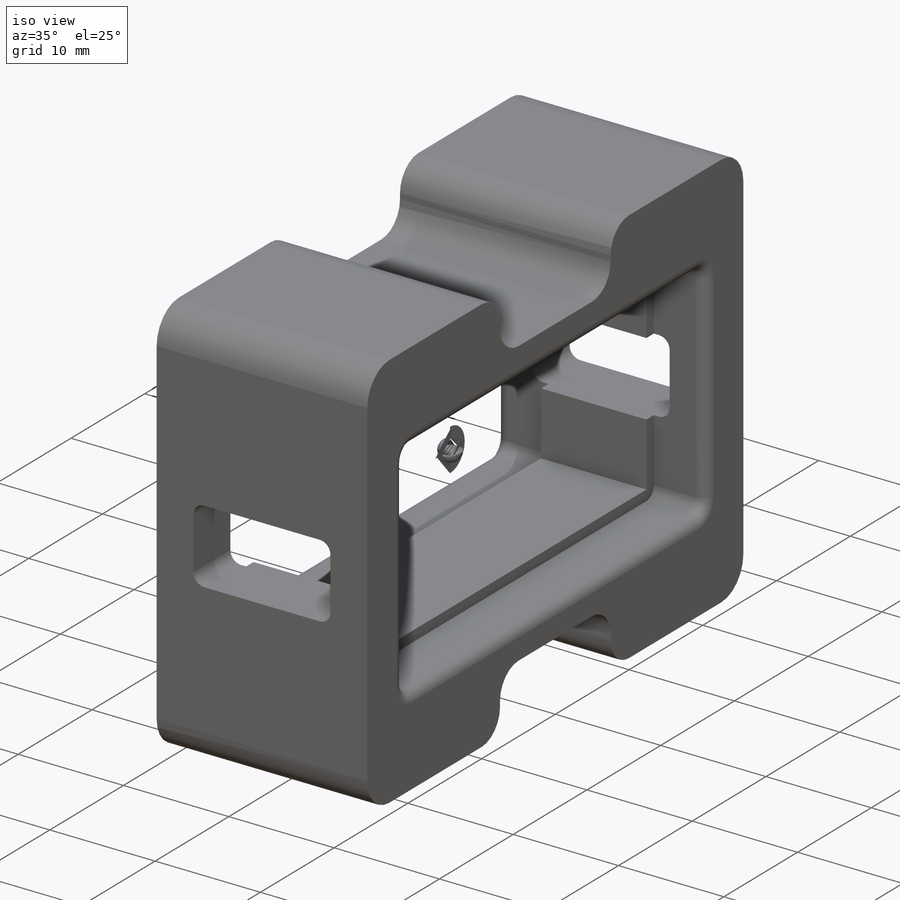
[diagram: iso view]
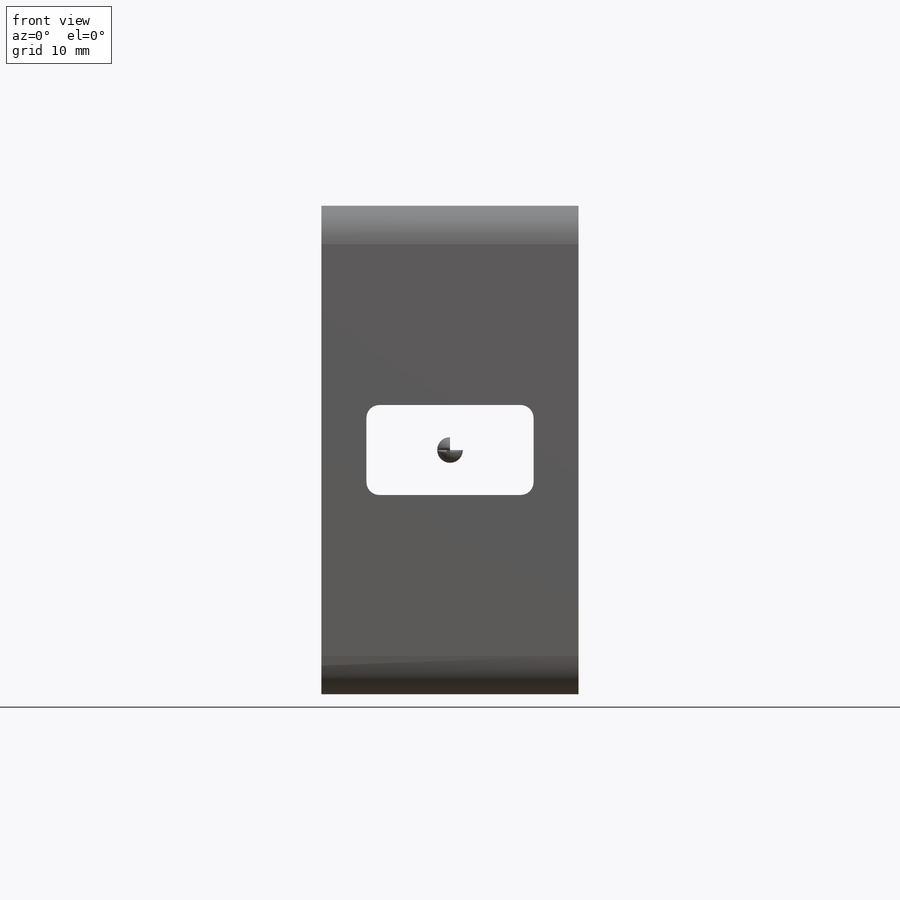
[diagram: front view]
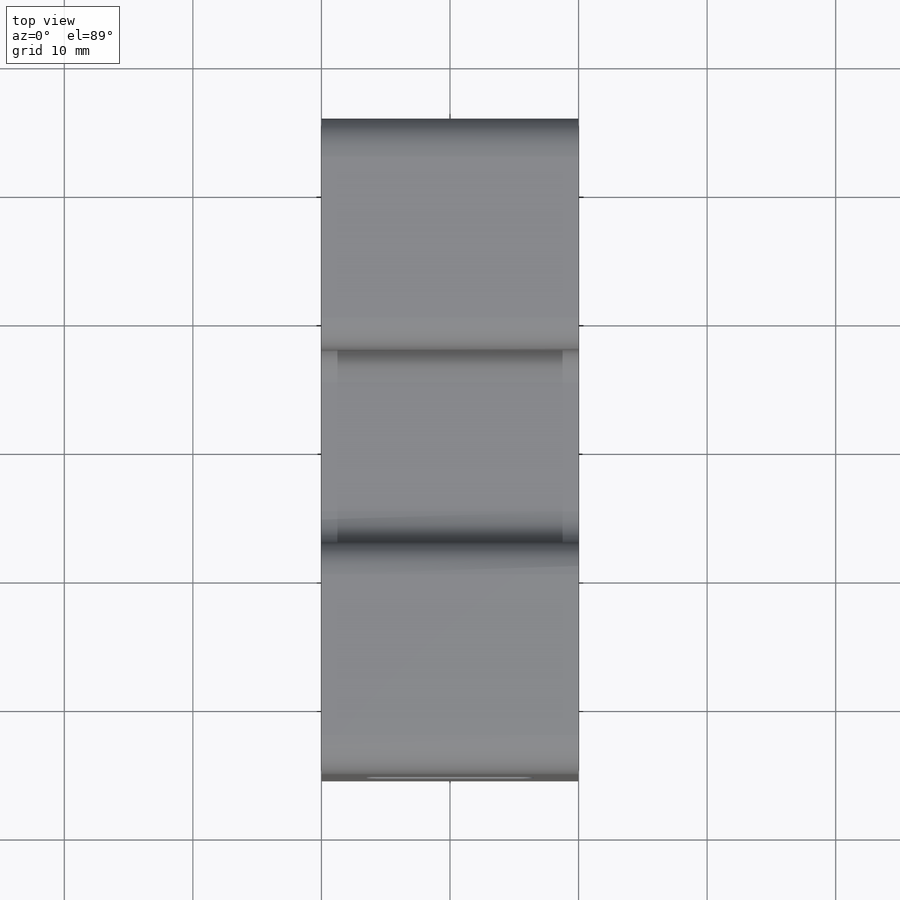
[diagram: top view]
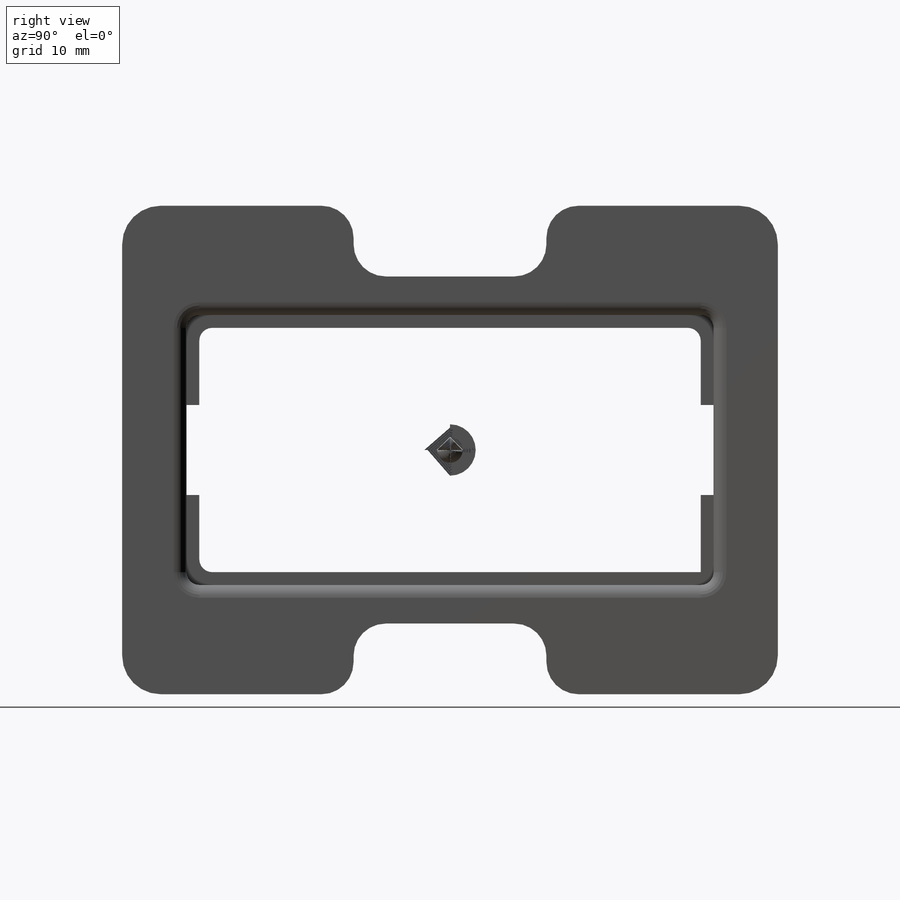
[diagram: right view]
SOLIDWORKS PART (.sldprt)
format: sldprt  version: not decoded by parser v0  size: 384,000 bytes
history: native  units: mm
features: fillet x5, sketch x4, extrude x2, cut_extrude x2, material x1 (+12 scaffold rows collapsed)
feature tree (26):
  scaffold x12  (default folders/planes/origin — collapsed)
  material  "ABS"
  sketch  "Sketch1"  dims[D1=38.0mm D2=51.0mm D3=41.0mm D4=21.0mm]
  extrude  "Main Body"  Depth=20mm
  sketch  "Sketch2"  dims[D1=0.0mm D2=1.0mm]
  extrude  "Mid Servo Gap"  Depth=10mm
  fillet  "Edge Contouring"  Radius=1mm
  sketch  "Sketch3"  dims[D1=7.0mm D2=13.0mm]
  cut_extrude  "Airway"  [1 undecoded]
  sketch  "Sketch4"  dims[D1=3.0mm D2=15.0mm]
  cut_extrude  "Clearance - Cables"  [1 undecoded]
  fillet  "Contouring - Outer"  Radius=3mm
  fillet  "Contouring - Airway"  Radius=1mm
  fillet  "Contouring - Inner"  Radius=2.5mm
  fillet  "Clearance - Servo Insertion"  Radius=1mm
decode coverage: 11 of 13 modeling features carry decoded parameters
note: 2 parameter values undecoded
note: suppression state not decoded; provenance and decode notes live in map.json
